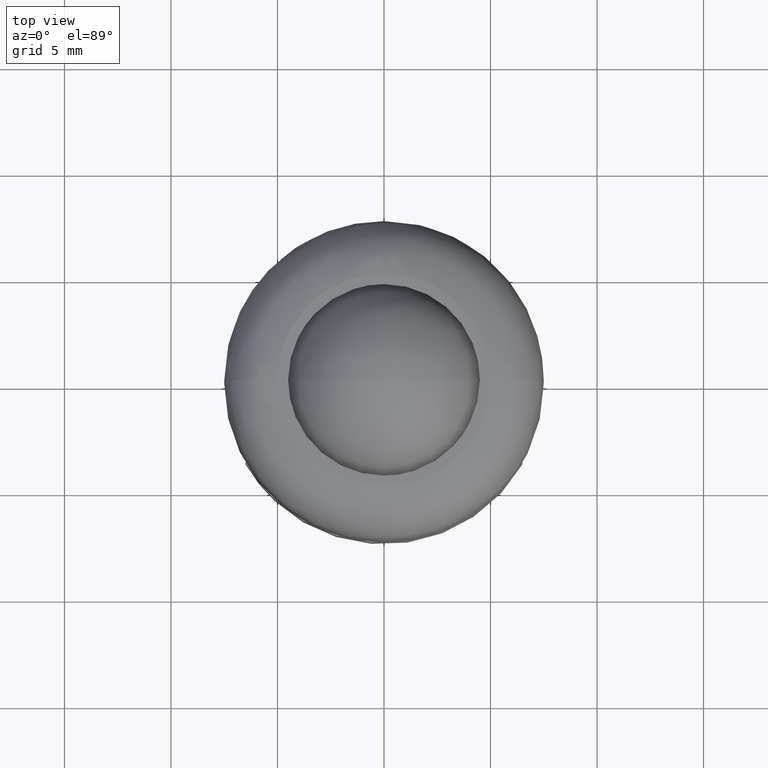
[diagram: clean part render]
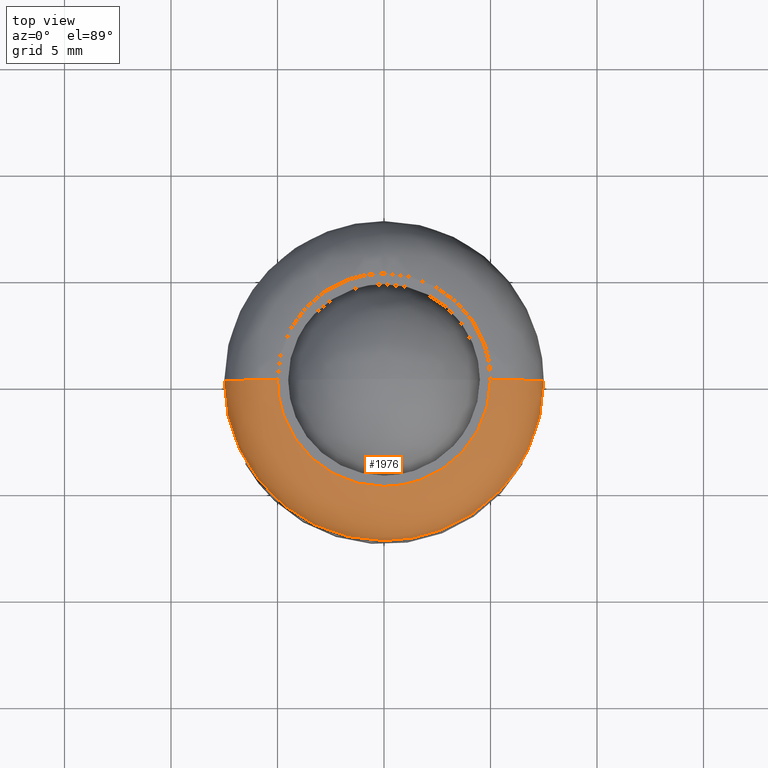
[diagram: same view with one face highlighted and labeled with its STEP entity id]
A machine part, top view. The second image highlights one B-rep face of the part: STEP entity #1976.
In plain terms, the highlighted face is a freeform B-spline surface patch.
Its self-contained STEP definition (entity closure, byte-faithful):
#1687=CARTESIAN_POINT('',(7.499999999999998,4.377505E-016,6.500000000040418));
#1688=VERTEX_POINT('',#1687);
#1707=CARTESIAN_POINT('',(5.440307707149891,-5.162659246110355,6.500000000040007));
#1708=VERTEX_POINT('',#1707);
#1709=CARTESIAN_POINT('',(7.499999999999998,4.377505E-016,6.500000000040418));
#1710=CARTESIAN_POINT('',(7.500011942881527,-0.370711692840164,6.500000000040399));
#1711=CARTESIAN_POINT('',(7.439434150356473,-1.186277367326884,6.500000000040311));
#1712=CARTESIAN_POINT('',(7.149041069206016,-2.387315429761816,6.500000000040249));
#1713=CARTESIAN_POINT('',(6.698993809131020,-3.424759486847481,6.500000000040102));
#1714=CARTESIAN_POINT('',(6.136369386299003,-4.351346258991158,6.500000000040139));
#1715=CARTESIAN_POINT('',(5.715923945198815,-4.872258874442154,6.500000000039981));
#1716=CARTESIAN_POINT('',(5.440307707149891,-5.162659246110355,6.500000000040007));
#1717=B_SPLINE_CURVE_WITH_KNOTS('',3,(#1709,#1710,#1711,#1712,#1713,#1714,#1715,#1716),.UNSPECIFIED.,.F.,.U.,(4,1,1,1,1,4),(3.950186E-009,1.112136335735151,2.446707132500687,3.692294719165874,4.493036310739826,5.694144992032105),.UNSPECIFIED.);
#1718=EDGE_CURVE('',#1688,#1708,#1717,.T.);
#1754=CARTESIAN_POINT('',(-7.499999999999998,-8.755010E-016,6.500000000040419));
#1755=VERTEX_POINT('',#1754);
#1772=CARTESIAN_POINT('',(-0.000000416591383,-7.499999999999989,6.500000000040419));
#1773=VERTEX_POINT('',#1772);
#1774=CARTESIAN_POINT('',(5.440307707149891,-5.162659246110355,6.500000000040007));
#1775=CARTESIAN_POINT('',(5.134825783394453,-5.484638252556060,6.500000000040035));
#1776=CARTESIAN_POINT('',(4.561921607560721,-5.989861916728413,6.500000000040065));
#1777=CARTESIAN_POINT('',(3.626272515932073,-6.590429306053931,6.500000000040150));
#1778=CARTESIAN_POINT('',(2.589975917490963,-7.075178504410705,6.500000000040237));
#1779=CARTESIAN_POINT('',(1.363195888386828,-7.418178350030994,6.500000000040265));
#1780=CARTESIAN_POINT('',(0.443832212743331,-7.500036665730044,6.500000000040479));
#1781=CARTESIAN_POINT('',(-0.000000416591383,-7.499999999999989,6.500000000040419));
#1782=B_SPLINE_CURVE_WITH_KNOTS('',3,(#1774,#1775,#1776,#1777,#1778,#1779,#1780,#1781),.UNSPECIFIED.,.F.,.U.,(4,1,1,1,1,4),(4.373620E-009,1.331497504158605,2.282568078879588,3.328738592951718,4.755348735777430,6.086846336362128),.UNSPECIFIED.);
#1783=EDGE_CURVE('',#1708,#1773,#1782,.T.);
#1785=CARTESIAN_POINT('',(-0.000000416591383,-7.499999999999989,6.500000000040419));
#1786=CARTESIAN_POINT('',(-0.444857313349544,-7.500044876639160,6.500000000040346));
#1787=CARTESIAN_POINT('',(-1.288529391069930,-7.424709734548770,6.500000000040490));
#1788=CARTESIAN_POINT('',(-2.464095041166809,-7.114886855616065,6.500000000040396));
#1789=CARTESIAN_POINT('',(-3.422876533338484,-6.696882556471848,6.500000000040408));
#1790=CARTESIAN_POINT('',(-4.173987213407036,-6.246668319501539,6.500000000040418));
#1791=CARTESIAN_POINT('',(-4.813893295691434,-5.769028415539033,6.500000000040442));
#1792=CARTESIAN_POINT('',(-5.502598836832476,-5.133218905961646,6.500000000040331));
#1793=CARTESIAN_POINT('',(-6.251717182259900,-4.214749383452229,6.500000000040514));
#1794=CARTESIAN_POINT('',(-6.827004263024278,-3.177029592696877,6.500000000040275));
#1795=CARTESIAN_POINT('',(-7.214573275084041,-2.124392748981702,6.500000000040606));
#1796=CARTESIAN_POINT('',(-7.443404148035429,-1.119797859022601,6.500000000039912));
#1797=CARTESIAN_POINT('',(-7.500022108414224,-0.383493873008291,6.500000000041154));
#1798=CARTESIAN_POINT('',(-7.499999999999998,-8.755010E-016,6.500000000040419));
#1799=B_SPLINE_CURVE_WITH_KNOTS('',3,(#1785,#1786,#1787,#1788,#1789,#1790,#1791,#1792,#1793,#1794,#1795,#1796,#1797,#1798),.UNSPECIFIED.,.F.,.U.,(4,1,1,1,1,1,1,1,1,1,1,4),(0.000000015619332,1.334562869796145,2.531070538555785,3.635541147990562,4.463891978558560,5.154185833317429,6.028545206963860,7.271079405202934,8.697683985695985,9.572055197383609,10.630511055442920,11.780990697090070),.UNSPECIFIED.);
#1800=EDGE_CURVE('',#1773,#1755,#1799,.T.);
#1834=CARTESIAN_POINT('',(-5.000000000026335,-5.084947E-016,9.0));
#1835=VERTEX_POINT('',#1834);
#1836=CARTESIAN_POINT('',(-5.000000000026335,-5.084947E-016,9.0));
#1837=CARTESIAN_POINT('',(-5.163623164518440,-6.422613E-016,9.000013293347669));
#1838=CARTESIAN_POINT('',(-5.521546890630814,-9.112095E-016,8.964757369232906));
#1839=CARTESIAN_POINT('',(-6.050563951079113,-1.228896E-015,8.793628179097231));
#1840=CARTESIAN_POINT('',(-6.481681630624469,-1.405575E-015,8.531579162892765));
#1841=CARTESIAN_POINT('',(-6.771853208317070,-1.468526E-015,8.271756269541475));
#1842=CARTESIAN_POINT('',(-7.002458751451703,-1.482143E-015,8.010977093416964));
#1843=CARTESIAN_POINT('',(-7.245593161395003,-1.433649E-015,7.642316594621645));
#1844=CARTESIAN_POINT('',(-7.449532987274613,-1.245756E-015,7.113579630340230));
#1845=CARTESIAN_POINT('',(-7.500049068709974,-1.012716E-015,6.704534218698465));
#1846=CARTESIAN_POINT('',(-7.499999999999998,-8.755010E-016,6.500000000040419));
#1847=B_SPLINE_CURVE_WITH_KNOTS('',3,(#1836,#1837,#1838,#1839,#1840,#1841,#1842,#1843,#1844,#1845,#1846),.UNSPECIFIED.,.F.,.U.,(4,1,1,1,1,1,1,1,4),(0.000000020273796,0.490870923332792,1.073794516318968,1.656717872869358,1.994181803359655,2.239618341467335,2.699820190180929,3.313419622742426,3.927015457150656),.UNSPECIFIED.);
#1848=EDGE_CURVE('',#1835,#1755,#1847,.T.);
#1868=CARTESIAN_POINT('',(5.000000000026335,2.542473E-016,9.0));
#1869=VERTEX_POINT('',#1868);
#1885=CARTESIAN_POINT('',(5.000000000026335,2.542473E-016,9.0));
#1886=CARTESIAN_POINT('',(5.224993042445592,3.462386E-016,9.000084245972948));
#1887=CARTESIAN_POINT('',(5.582874665400821,4.761706E-016,8.951334599216775));
#1888=CARTESIAN_POINT('',(6.055136948615265,6.114335E-016,8.779064918306965));
#1889=CARTESIAN_POINT('',(6.457040487834616,6.993697E-016,8.551422492913279));
#1890=CARTESIAN_POINT('',(6.823211591413831,7.431176E-016,8.235560547614481));
#1891=CARTESIAN_POINT('',(7.124096546426765,7.351564E-016,7.845074421623770));
#1892=CARTESIAN_POINT('',(7.325063162567957,6.854333E-016,7.451839713899297));
#1893=CARTESIAN_POINT('',(7.464815814551272,5.914010E-016,7.001084417534730));
#1894=CARTESIAN_POINT('',(7.500036834093343,4.994941E-016,6.684079713906906));
#1895=CARTESIAN_POINT('',(7.499999999999998,4.377505E-016,6.500000000040418));
#1896=B_SPLINE_CURVE_WITH_KNOTS('',3,(#1885,#1886,#1887,#1888,#1889,#1890,#1891,#1892,#1893,#1894,#1895),.UNSPECIFIED.,.F.,.U.,(4,1,1,1,1,1,1,1,4),(0.000000020274206,0.674952275255266,1.073794516319282,1.503313239801967,2.055536011331614,2.515739325919262,2.975941583534981,3.374783871019506,3.927015457150660),.UNSPECIFIED.);
#1897=EDGE_CURVE('',#1869,#1688,#1896,.T.);
#1905=CARTESIAN_POINT('',(4.826623561338355,0.134936648841677,8.993980876132977));
#1906=CARTESIAN_POINT('',(4.826623561338355,0.067861243050944,8.993980876132975));
#1907=CARTESIAN_POINT('',(4.826623561338356,-4.826623561338353,8.993980876132977));
#1908=CARTESIAN_POINT('',(5.910714E-016,-4.826623561338355,8.993980876132977));
#1909=CARTESIAN_POINT('',(-4.826623561338353,-4.826623561338356,8.993980876132977));
#1910=CARTESIAN_POINT('',(-4.826623561338354,0.067861243050944,8.993980876132975));
#1911=CARTESIAN_POINT('',(-4.826623561338354,0.134936648841678,8.993980876132975));
#1912=CARTESIAN_POINT('',(7.694348179799923,0.215108873772489,9.193339213708565));
#1913=CARTESIAN_POINT('',(7.694348179799924,0.108180806999418,9.193339213708567));
#1914=CARTESIAN_POINT('',(7.694348179799923,-7.694348179799921,9.193339213708565));
#1915=CARTESIAN_POINT('',(9.422548E-016,-7.694348179799923,9.193339213708565));
#1916=CARTESIAN_POINT('',(-7.694348179799921,-7.694348179799923,9.193339213708565));
#1917=CARTESIAN_POINT('',(-7.694348179799922,0.108180806999419,9.193339213708565));
#1918=CARTESIAN_POINT('',(-7.694348179799923,0.215108873772492,9.193339213708565));
#1919=CARTESIAN_POINT('',(7.493915763898146,0.209505437296178,6.325689465090855));
#1920=CARTESIAN_POINT('',(7.493915763898145,0.105362772255680,6.325689465090854));
#1921=CARTESIAN_POINT('',(7.493915763898145,-7.493915763898144,6.325689465090854));
#1922=CARTESIAN_POINT('',(9.177097E-016,-7.493915763898146,6.325689465090854));
#1923=CARTESIAN_POINT('',(-7.493915763898144,-7.493915763898147,6.325689465090854));
#1924=CARTESIAN_POINT('',(-7.493915763898146,0.105362772255680,6.325689465090854));
#1925=CARTESIAN_POINT('',(-7.493915763898146,0.209505437296181,6.325689465090854));
#1933=(BOUNDED_SURFACE()B_SPLINE_SURFACE(2,2,((#1905,#1912,#1919),(#1906,#1913,#1920),(#1907,#1914,#1921),(#1908,#1915,#1922),(#1909,#1916,#1923),(#1910,#1917,#1924),(#1911,#1918,#1925)),.UNSPECIFIED.,.F.,.F.,.U.)B_SPLINE_SURFACE_WITH_KNOTS((3,1,2,1,3),(3,3),(0.0,0.248326523575046,12.664652702327629,25.080978881080199,25.329305404655258),(0.0,4.556817942492553),.UNSPECIFIED.)GEOMETRIC_REPRESENTATION_ITEM()RATIONAL_B_SPLINE_SURFACE(((0.926697838400259,0.606435486919035,0.921564728292852),(0.921332230155912,0.602924207283492,0.916228840909793),(0.647686209694202,0.423848945870745,0.644098584373797),(0.915966621911565,0.599412927647948,0.910892953526734),(0.647686209694202,0.423848945870745,0.644098584373797),(0.921332230155912,0.602924207283492,0.916228840909793),(0.926697838400259,0.606435486919036,0.921564728292852)))REPRESENTATION_ITEM('')SURFACE());
#1934=ORIENTED_EDGE('',*,*,#1848,.T.);
#1935=ORIENTED_EDGE('',*,*,#1800,.F.);
#1936=ORIENTED_EDGE('',*,*,#1783,.F.);
#1937=ORIENTED_EDGE('',*,*,#1718,.F.);
#1938=ORIENTED_EDGE('',*,*,#1897,.F.);
#1939=CARTESIAN_POINT('',(-0.000000336808595,-4.999999999999989,9.0));
#1940=VERTEX_POINT('',#1939);
#1941=CARTESIAN_POINT('',(5.000000000026335,2.542473E-016,9.0));
#1942=CARTESIAN_POINT('',(5.000084806618347,-0.388615493358344,9.000000000000018));
#1943=CARTESIAN_POINT('',(4.928092388131001,-1.002166223801259,8.999999999999981));
#1944=CARTESIAN_POINT('',(4.703429980918924,-1.726624805755042,9.000000000000021));
#1945=CARTESIAN_POINT('',(4.470266932164901,-2.261461041644797,8.999999999999952));
#1946=CARTESIAN_POINT('',(4.119897215946399,-2.875653772977354,9.000000000000139));
#1947=CARTESIAN_POINT('',(3.604589518768227,-3.503565755492311,8.999999999999927));
#1948=CARTESIAN_POINT('',(2.980103495881938,-4.035538991961122,9.000000000000018));
#1949=CARTESIAN_POINT('',(2.391246044237571,-4.408421849095472,9.000000000000012));
#1950=CARTESIAN_POINT('',(1.664389722503119,-4.741409260573711,8.999999999999897));
#1951=CARTESIAN_POINT('',(0.859035483470022,-4.953660952711179,9.000000000000313));
#1952=CARTESIAN_POINT('',(0.255661280847256,-5.000006337747420,8.999999999999602));
#1953=CARTESIAN_POINT('',(-0.000000336808595,-4.999999999999989,9.0));
#1954=B_SPLINE_CURVE_WITH_KNOTS('',3,(#1941,#1942,#1943,#1944,#1945,#1946,#1947,#1948,#1949,#1950,#1951,#1952,#1953),.UNSPECIFIED.,.F.,.U.,(4,1,1,1,1,1,1,1,1,1,4),(0.000000019283349,1.165822404355972,1.840779340782778,2.270297311087745,2.914569794716536,3.957664871960263,4.693987620342944,5.368940895101786,6.043894198019204,7.087003606568299,7.853994144450311),.UNSPECIFIED.);
#1955=EDGE_CURVE('',#1869,#1940,#1954,.T.);
#1956=ORIENTED_EDGE('',*,*,#1955,.T.);
#1957=CARTESIAN_POINT('',(-0.000000336808595,-4.999999999999989,9.0));
#1958=CARTESIAN_POINT('',(-0.286342856185159,-5.000025053253181,8.999999999999988));
#1959=CARTESIAN_POINT('',(-0.807886578424007,-4.955071177288686,9.000000000000018));
#1960=CARTESIAN_POINT('',(-1.534412831272753,-4.775455326648530,9.000000000000011));
#1961=CARTESIAN_POINT('',(-2.172057096407270,-4.520454369448562,9.000000000000002));
#1962=CARTESIAN_POINT('',(-2.751748144740120,-4.192062841622538,8.999999999999933));
#1963=CARTESIAN_POINT('',(-3.242216502603682,-3.821252328032630,9.000000000000135));
#1964=CARTESIAN_POINT('',(-3.671120843370192,-3.410383784270498,8.999999999999931));
#1965=CARTESIAN_POINT('',(-4.057471299217905,-2.945463020128030,9.000000000000016));
#1966=CARTESIAN_POINT('',(-4.474269552192408,-2.287349003540151,9.000000000000043));
#1967=CARTESIAN_POINT('',(-4.800874272050918,-1.498890924731814,8.999999999999940));
#1968=CARTESIAN_POINT('',(-4.970475881173186,-0.685176651004804,9.000000000000039));
#1969=CARTESIAN_POINT('',(-5.000003017878960,-0.204529687578524,8.999999999999989));
#1970=CARTESIAN_POINT('',(-5.000000000026335,-5.084947E-016,9.0));
#1971=B_SPLINE_CURVE_WITH_KNOTS('',3,(#1957,#1958,#1959,#1960,#1961,#1962,#1963,#1964,#1965,#1966,#1967,#1968,#1969,#1970),.UNSPECIFIED.,.F.,.U.,(4,1,1,1,1,1,1,1,1,1,1,4),(0.000000019317402,0.859023055523624,1.564662940271283,2.239615636805251,2.914569653936060,3.558849973868960,4.080393500338751,4.693987393218050,5.368940635474933,6.412050021703826,7.240402390660102,7.853993764787926),.UNSPECIFIED.);
#1972=EDGE_CURVE('',#1940,#1835,#1971,.T.);
#1973=ORIENTED_EDGE('',*,*,#1972,.T.);
#1974=EDGE_LOOP('',(#1934,#1935,#1936,#1937,#1938,#1956,#1973));
#1975=FACE_OUTER_BOUND('',#1974,.T.);
#1976=ADVANCED_FACE('',(#1975),#1933,.T.);